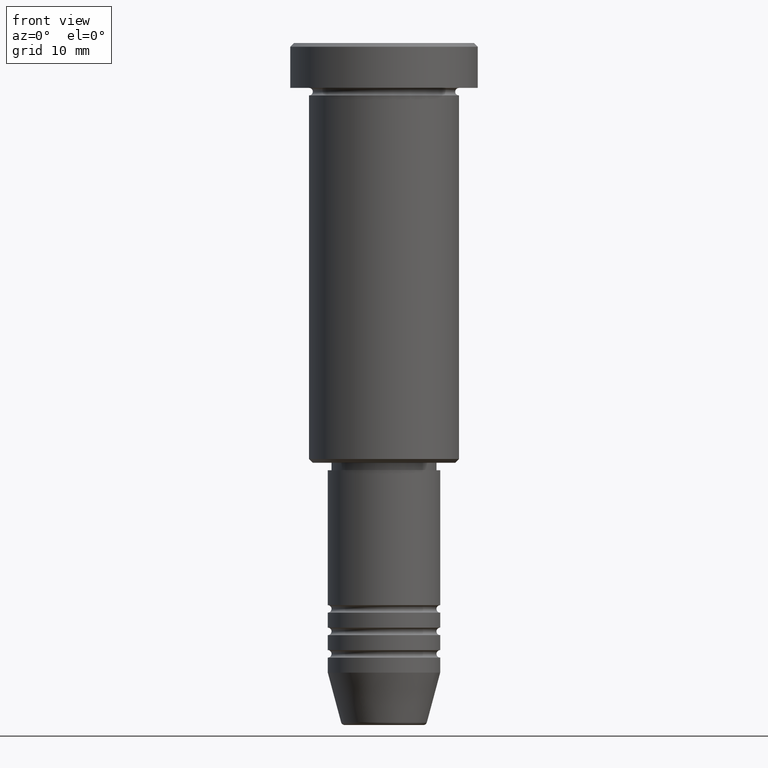
[diagram: clean part render]
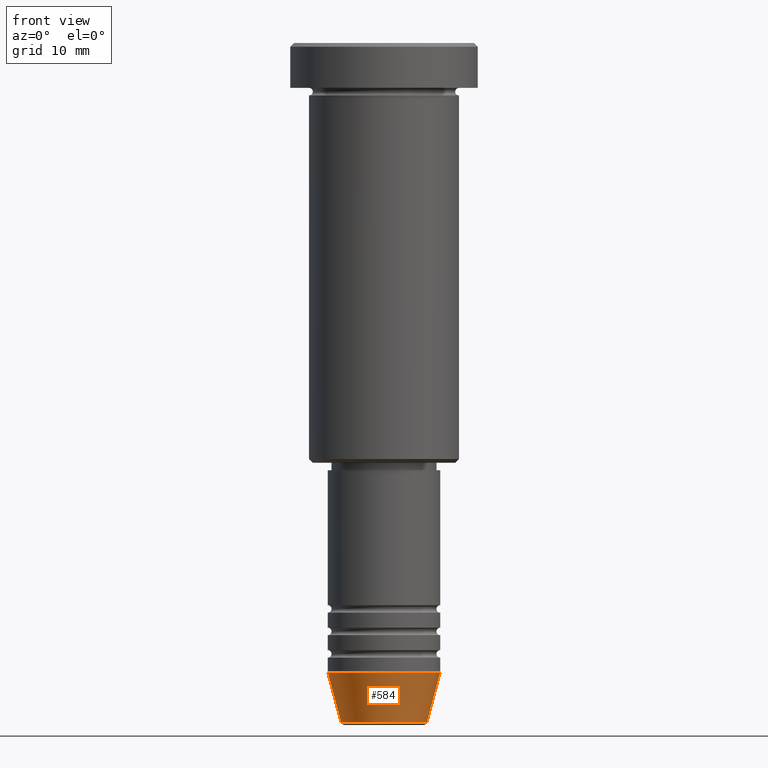
[diagram: same view with one face highlighted and labeled with its STEP entity id]
A machine part, front view. The second image highlights one B-rep face of the part: STEP entity #584.
In plain terms, the highlighted conical surface has half-angle 15 deg.
Its self-contained STEP definition (entity closure, byte-faithful):
#12 = VERTEX_POINT ( 'NONE', #239 ) ;
#52 = VERTEX_POINT ( 'NONE', #593 ) ;
#53 = DIRECTION ( 'NONE',  ( -0.000000000000000000, -0.000000000000000000, 1.000000000000000000 ) ) ;
#54 = ORIENTED_EDGE ( 'NONE', *, *, #335, .T. ) ;
#162 = EDGE_CURVE ( 'NONE', #12, #280, #539, .T. ) ;
#173 = AXIS2_PLACEMENT_3D ( 'NONE', #1112, #669, #295 ) ;
#232 = ORIENTED_EDGE ( 'NONE', *, *, #508, .T. ) ;
#239 = CARTESIAN_POINT ( 'NONE',  ( -7.500000000000000000, 9.184850993605147944E-16, -84.00000000000000000 ) ) ;
#271 = LINE ( 'NONE', #452, #597 ) ;
#280 = VERTEX_POINT ( 'NONE', #528 ) ;
#295 = DIRECTION ( 'NONE',  ( 1.000000000000000000, 0.000000000000000000, 0.000000000000000000 ) ) ;
#335 = EDGE_CURVE ( 'NONE', #52, #1079, #615, .T. ) ;
#366 = EDGE_CURVE ( 'NONE', #52, #12, #271, .T. ) ;
#412 = CARTESIAN_POINT ( 'NONE',  ( 0.000000000000000000, 0.000000000000000000, -90.62940952255125637 ) ) ;
#429 = CARTESIAN_POINT ( 'NONE',  ( 5.723655072137191269, 0.000000000000000000, -90.62940952255125637 ) ) ;
#452 = CARTESIAN_POINT ( 'NONE',  ( -7.500000000000000000, 9.184850993605147944E-16, -84.00000000000000000 ) ) ;
#473 = CARTESIAN_POINT ( 'NONE',  ( 0.000000000000000000, 0.000000000000000000, -84.00000000000000000 ) ) ;
#484 = FACE_OUTER_BOUND ( 'NONE', #694, .T. ) ;
#498 = AXIS2_PLACEMENT_3D ( 'NONE', #473, #832, #572 ) ;
#508 = EDGE_CURVE ( 'NONE', #1079, #280, #813, .T. ) ;
#528 = CARTESIAN_POINT ( 'NONE',  ( 7.500000000000000000, 0.000000000000000000, -84.00000000000000000 ) ) ;
#539 = CIRCLE ( 'NONE', #173, 7.500000000000000000 ) ;
#540 = VECTOR ( 'NONE', #1076, 1000.000000000000000 ) ;
#572 = DIRECTION ( 'NONE',  ( 1.000000000000000000, 0.000000000000000000, 0.000000000000000000 ) ) ;
#584 = ADVANCED_FACE ( 'NONE', ( #484 ), #598, .T. ) ;
#593 = CARTESIAN_POINT ( 'NONE',  ( -5.723655072137191269, 8.097153428560735915E-16, -90.62940952255125637 ) ) ;
#597 = VECTOR ( 'NONE', #1171, 1000.000000000000000 ) ;
#598 = CONICAL_SURFACE ( 'NONE', #498, 7.500000000000000000, 0.2617993877991500740 ) ;
#615 = CIRCLE ( 'NONE', #717, 5.723655072137191269 ) ;
#669 = DIRECTION ( 'NONE',  ( -0.000000000000000000, -0.000000000000000000, 1.000000000000000000 ) ) ;
#670 = ORIENTED_EDGE ( 'NONE', *, *, #366, .F. ) ;
#694 = EDGE_LOOP ( 'NONE', ( #670, #54, #232, #1137 ) ) ;
#717 = AXIS2_PLACEMENT_3D ( 'NONE', #412, #53, #782 ) ;
#782 = DIRECTION ( 'NONE',  ( 1.000000000000000000, 0.000000000000000000, 0.000000000000000000 ) ) ;
#813 = LINE ( 'NONE', #1162, #540 ) ;
#832 = DIRECTION ( 'NONE',  ( -0.000000000000000000, -0.000000000000000000, 1.000000000000000000 ) ) ;
#1076 = DIRECTION ( 'NONE',  ( 0.2588190451025213501, 0.000000000000000000, 0.9659258262890680902 ) ) ;
#1079 = VERTEX_POINT ( 'NONE', #429 ) ;
#1112 = CARTESIAN_POINT ( 'NONE',  ( 0.000000000000000000, 0.000000000000000000, -84.00000000000000000 ) ) ;
#1137 = ORIENTED_EDGE ( 'NONE', *, *, #162, .F. ) ;
#1162 = CARTESIAN_POINT ( 'NONE',  ( 7.500000000000000000, 0.000000000000000000, -84.00000000000000000 ) ) ;
#1171 = DIRECTION ( 'NONE',  ( -0.2588190451025213501, 3.169619151431772337E-17, 0.9659258262890680902 ) ) ;